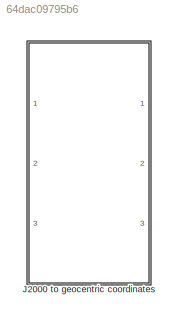
MODEL slx_64dac09795b6
KIND library
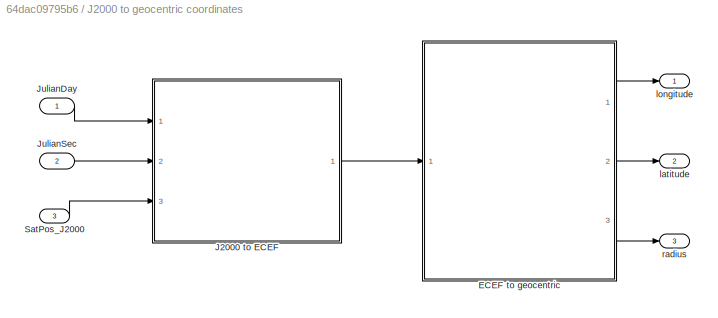
BLOCK [SubSystem] J2000 to geocentric coordinates
  Ports = [3, 3]
  RequestExecContextInheritance = off
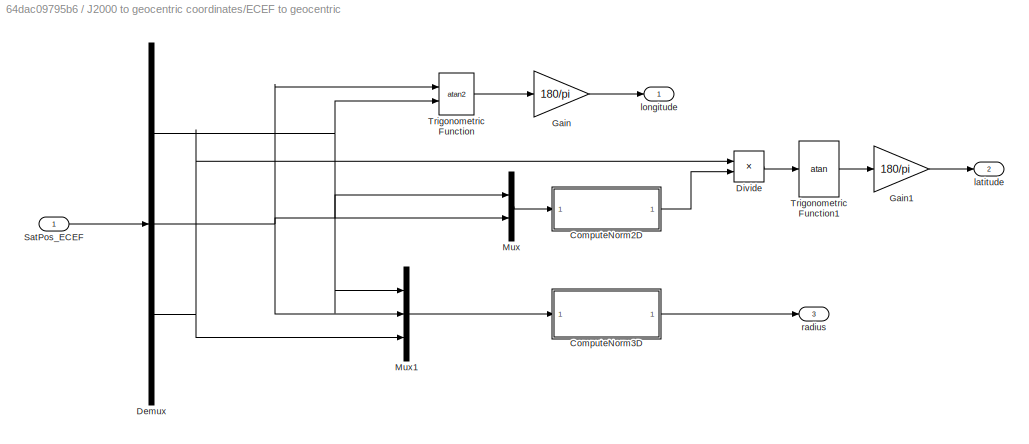
BLOCK [SubSystem] J2000 to geocentric coordinates/ECEF to geocentric
  Ports = [1, 3]
  RequestExecContextInheritance = off
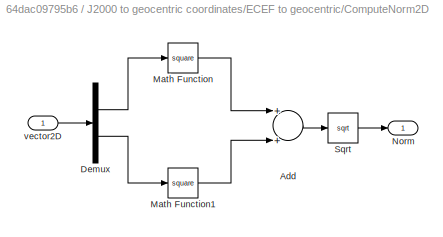
BLOCK [SubSystem] J2000 to geocentric coordinates/ECEF to geocentric/ComputeNorm2D
  Ports = [1, 1]
  RequestExecContextInheritance = off
BLOCK [Sum] J2000 to geocentric coordinates/ECEF to geocentric/ComputeNorm2D/Add
  InputSameDT = off
  OutDataTypeStr = Inherit: Inherit via internal rule
  Ports = [2, 1]
  SaturateOnIntegerOverflow = off
BLOCK [Demux] J2000 to geocentric coordinates/ECEF to geocentric/ComputeNorm2D/Demux
  DisplayOption = bar
  Outputs = 2
  Ports = [1, 2]
BLOCK [Math] J2000 to geocentric coordinates/ECEF to geocentric/ComputeNorm2D/Math Function
  Operator = square
  Ports = [1, 1]
BLOCK [Math] J2000 to geocentric coordinates/ECEF to geocentric/ComputeNorm2D/Math Function1
  Operator = square
  Ports = [1, 1]
BLOCK [Outport] J2000 to geocentric coordinates/ECEF to geocentric/ComputeNorm2D/Norm
  IconDisplay = Port number
BLOCK [Sqrt] J2000 to geocentric coordinates/ECEF to geocentric/ComputeNorm2D/Sqrt
BLOCK [Inport] J2000 to geocentric coordinates/ECEF to geocentric/ComputeNorm2D/vector2D
  IconDisplay = Port number
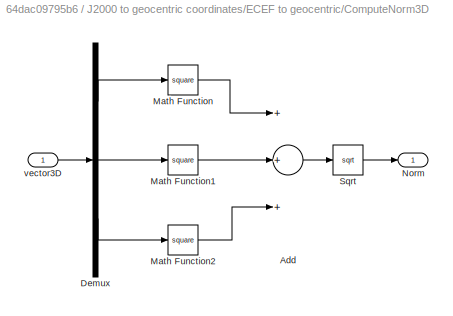
BLOCK [SubSystem] J2000 to geocentric coordinates/ECEF to geocentric/ComputeNorm3D
  Ports = [1, 1]
  RequestExecContextInheritance = off
BLOCK [Sum] J2000 to geocentric coordinates/ECEF to geocentric/ComputeNorm3D/Add
  InputSameDT = off
  Inputs = +++
  OutDataTypeStr = Inherit: Inherit via internal rule
  Ports = [3, 1]
  SaturateOnIntegerOverflow = off
BLOCK [Demux] J2000 to geocentric coordinates/ECEF to geocentric/ComputeNorm3D/Demux
  DisplayOption = bar
  Outputs = 3
  Ports = [1, 3]
BLOCK [Math] J2000 to geocentric coordinates/ECEF to geocentric/ComputeNorm3D/Math Function
  Operator = square
  Ports = [1, 1]
BLOCK [Math] J2000 to geocentric coordinates/ECEF to geocentric/ComputeNorm3D/Math Function1
  Operator = square
  Ports = [1, 1]
BLOCK [Math] J2000 to geocentric coordinates/ECEF to geocentric/ComputeNorm3D/Math Function2
  Operator = square
  Ports = [1, 1]
BLOCK [Outport] J2000 to geocentric coordinates/ECEF to geocentric/ComputeNorm3D/Norm
  IconDisplay = Port number
BLOCK [Sqrt] J2000 to geocentric coordinates/ECEF to geocentric/ComputeNorm3D/Sqrt
BLOCK [Inport] J2000 to geocentric coordinates/ECEF to geocentric/ComputeNorm3D/vector3D
  IconDisplay = Port number
BLOCK [Demux] J2000 to geocentric coordinates/ECEF to geocentric/Demux
  DisplayOption = bar
  Outputs = 3
  Ports = [1, 3]
BLOCK [Product] J2000 to geocentric coordinates/ECEF to geocentric/Divide
  InputSameDT = off
  Inputs = */
  OutDataTypeStr = Inherit: Inherit via internal rule
  Ports = [2, 1]
  RndMeth = Floor
  SaturateOnIntegerOverflow = off
BLOCK [Gain] J2000 to geocentric coordinates/ECEF to geocentric/Gain
  Gain = 180/pi
  OutDataTypeStr = Inherit: Inherit via internal rule
  ParamDataTypeStr = Inherit: Inherit via internal rule
  SaturateOnIntegerOverflow = off
BLOCK [Gain] J2000 to geocentric coordinates/ECEF to geocentric/Gain1
  Gain = 180/pi
  OutDataTypeStr = Inherit: Inherit via internal rule
  ParamDataTypeStr = Inherit: Inherit via internal rule
  SaturateOnIntegerOverflow = off
BLOCK [Mux] J2000 to geocentric coordinates/ECEF to geocentric/Mux
  DisplayOption = bar
  Inputs = 2
  Ports = [2, 1]
BLOCK [Mux] J2000 to geocentric coordinates/ECEF to geocentric/Mux1
  DisplayOption = bar
  Inputs = 3
  Ports = [3, 1]
BLOCK [Inport] J2000 to geocentric coordinates/ECEF to geocentric/SatPos_ECEF
  IconDisplay = Port number
BLOCK [Trigonometry] J2000 to geocentric coordinates/ECEF to geocentric/Trigonometric Function
  Operator = atan2
  Ports = [2, 1]
BLOCK [Trigonometry] J2000 to geocentric coordinates/ECEF to geocentric/Trigonometric Function1
  Operator = atan
  Ports = [1, 1]
BLOCK [Outport] J2000 to geocentric coordinates/ECEF to geocentric/latitude
  IconDisplay = Port number
  Port = 2
BLOCK [Outport] J2000 to geocentric coordinates/ECEF to geocentric/longitude
  IconDisplay = Port number
BLOCK [Outport] J2000 to geocentric coordinates/ECEF to geocentric/radius
  IconDisplay = Port number
  Port = 3
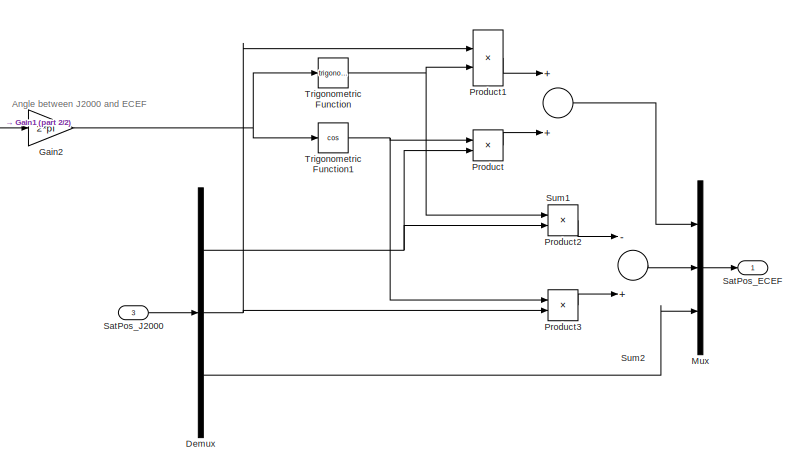
[diagram: J2000 to geocentric coordinates/J2000 to ECEF - part 1/2, right side, full height]
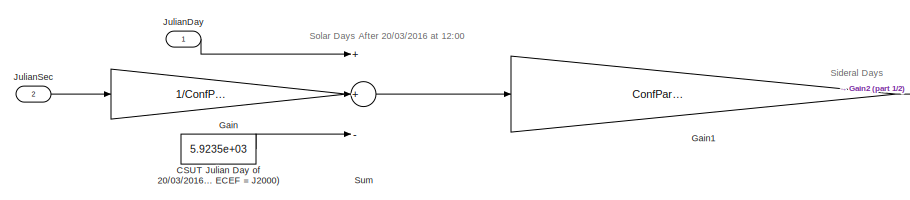
[diagram: J2000 to geocentric coordinates/J2000 to ECEF - part 2/2, top left region]
BLOCK [SubSystem] J2000 to geocentric coordinates/J2000 to ECEF
  Ports = [3, 1]
  RequestExecContextInheritance = off
BLOCK [Constant] J2000 to geocentric coordinates/J2000 to ECEF/CSUT Julian Day of 20//03//2016 at 12:00 UTC (moment in which ECEF = J2000)
  Value = 5.9235e+03
BLOCK [Demux] J2000 to geocentric coordinates/J2000 to ECEF/Demux
  DisplayOption = bar
  Outputs = 3
  Ports = [1, 3]
BLOCK [Gain] J2000 to geocentric coordinates/J2000 to ECEF/Gain
  Gain = 1/ConfParam.confConst.SolarDay
  OutDataTypeStr = Inherit: Inherit via internal rule
  ParamDataTypeStr = Inherit: Inherit via internal rule
  SaturateOnIntegerOverflow = off
BLOCK [Gain] J2000 to geocentric coordinates/J2000 to ECEF/Gain1
  Gain = ConfParam.confConst.SolarDay/ConfParam.confConst.SideralDay
  OutDataTypeStr = Inherit: Inherit via internal rule
  ParamDataTypeStr = Inherit: Inherit via internal rule
  SaturateOnIntegerOverflow = off
BLOCK [Gain] J2000 to geocentric coordinates/J2000 to ECEF/Gain2
  Gain = 2*pi
  OutDataTypeStr = Inherit: Inherit via internal rule
  ParamDataTypeStr = Inherit: Inherit via internal rule
  SaturateOnIntegerOverflow = off
BLOCK [Inport] J2000 to geocentric coordinates/J2000 to ECEF/JulianDay
  IconDisplay = Port number
BLOCK [Inport] J2000 to geocentric coordinates/J2000 to ECEF/JulianSec
  IconDisplay = Port number
  Port = 2
BLOCK [Mux] J2000 to geocentric coordinates/J2000 to ECEF/Mux
  DisplayOption = bar
  Inputs = 3
  Ports = [3, 1]
BLOCK [Product] J2000 to geocentric coordinates/J2000 to ECEF/Product
  InputSameDT = off
  OutDataTypeStr = Inherit: Inherit via internal rule
  Ports = [2, 1]
  RndMeth = Floor
  SaturateOnIntegerOverflow = off
BLOCK [Product] J2000 to geocentric coordinates/J2000 to ECEF/Product1
  InputSameDT = off
  OutDataTypeStr = Inherit: Inherit via internal rule
  Ports = [2, 1]
  RndMeth = Floor
  SaturateOnIntegerOverflow = off
BLOCK [Product] J2000 to geocentric coordinates/J2000 to ECEF/Product2
  InputSameDT = off
  OutDataTypeStr = Inherit: Inherit via internal rule
  Ports = [2, 1]
  RndMeth = Floor
  SaturateOnIntegerOverflow = off
BLOCK [Product] J2000 to geocentric coordinates/J2000 to ECEF/Product3
  InputSameDT = off
  OutDataTypeStr = Inherit: Inherit via internal rule
  Ports = [2, 1]
  RndMeth = Floor
  SaturateOnIntegerOverflow = off
BLOCK [Outport] J2000 to geocentric coordinates/J2000 to ECEF/SatPos_ECEF
  IconDisplay = Port number
BLOCK [Inport] J2000 to geocentric coordinates/J2000 to ECEF/SatPos_J2000
  IconDisplay = Port number
  Port = 3
BLOCK [Sum] J2000 to geocentric coordinates/J2000 to ECEF/Sum
  InputSameDT = off
  Inputs = ++-
  OutDataTypeStr = Inherit: Inherit via internal rule
  Ports = [3, 1]
  SaturateOnIntegerOverflow = off
BLOCK [Sum] J2000 to geocentric coordinates/J2000 to ECEF/Sum1
  InputSameDT = off
  OutDataTypeStr = Inherit: Inherit via internal rule
  Ports = [2, 1]
  SaturateOnIntegerOverflow = off
BLOCK [Sum] J2000 to geocentric coordinates/J2000 to ECEF/Sum2
  InputSameDT = off
  Inputs = -+
  OutDataTypeStr = Inherit: Inherit via internal rule
  Ports = [2, 1]
  SaturateOnIntegerOverflow = off
BLOCK [Trigonometry] J2000 to geocentric coordinates/J2000 to ECEF/Trigonometric Function
  Ports = [1, 1]
BLOCK [Trigonometry] J2000 to geocentric coordinates/J2000 to ECEF/Trigonometric Function1
  Operator = cos
  Ports = [1, 1]
BLOCK [Inport] J2000 to geocentric coordinates/JulianDay
  IconDisplay = Port number
BLOCK [Inport] J2000 to geocentric coordinates/JulianSec
  IconDisplay = Port number
  Port = 2
BLOCK [Inport] J2000 to geocentric coordinates/SatPos_J2000
  IconDisplay = Port number
  Port = 3
BLOCK [Outport] J2000 to geocentric coordinates/latitude
  IconDisplay = Port number
  Port = 2
BLOCK [Outport] J2000 to geocentric coordinates/longitude
  IconDisplay = Port number
BLOCK [Outport] J2000 to geocentric coordinates/radius
  IconDisplay = Port number
  Port = 3
ANNOTATION J2000 to geocentric coordinates/J2000 to ECEF: Angle between J2000 and ECEF
ANNOTATION J2000 to geocentric coordinates/J2000 to ECEF: Sideral Days
ANNOTATION J2000 to geocentric coordinates/J2000 to ECEF: Solar Days After 20/03/2016 at 12:00
LINE J2000 to geocentric coordinates/ECEF to geocentric/ComputeNorm2D/Add:1 -> J2000 to geocentric coordinates/ECEF to geocentric/ComputeNorm2D/Sqrt:1
LINE J2000 to geocentric coordinates/ECEF to geocentric/ComputeNorm2D/Demux:1 -> J2000 to geocentric coordinates/ECEF to geocentric/ComputeNorm2D/Math Function:1
LINE J2000 to geocentric coordinates/ECEF to geocentric/ComputeNorm2D/Demux:2 -> J2000 to geocentric coordinates/ECEF to geocentric/ComputeNorm2D/Math Function1:1
LINE J2000 to geocentric coordinates/ECEF to geocentric/ComputeNorm2D/Math Function1:1 -> J2000 to geocentric coordinates/ECEF to geocentric/ComputeNorm2D/Add:2
LINE J2000 to geocentric coordinates/ECEF to geocentric/ComputeNorm2D/Math Function:1 -> J2000 to geocentric coordinates/ECEF to geocentric/ComputeNorm2D/Add:1
LINE J2000 to geocentric coordinates/ECEF to geocentric/ComputeNorm2D/Sqrt:1 -> J2000 to geocentric coordinates/ECEF to geocentric/ComputeNorm2D/Norm:1
LINE J2000 to geocentric coordinates/ECEF to geocentric/ComputeNorm2D/vector2D:1 -> J2000 to geocentric coordinates/ECEF to geocentric/ComputeNorm2D/Demux:1
LINE J2000 to geocentric coordinates/ECEF to geocentric/ComputeNorm2D:1 -> J2000 to geocentric coordinates/ECEF to geocentric/Divide:2
LINE J2000 to geocentric coordinates/ECEF to geocentric/ComputeNorm3D/Add:1 -> J2000 to geocentric coordinates/ECEF to geocentric/ComputeNorm3D/Sqrt:1
LINE J2000 to geocentric coordinates/ECEF to geocentric/ComputeNorm3D/Demux:1 -> J2000 to geocentric coordinates/ECEF to geocentric/ComputeNorm3D/Math Function:1
LINE J2000 to geocentric coordinates/ECEF to geocentric/ComputeNorm3D/Demux:2 -> J2000 to geocentric coordinates/ECEF to geocentric/ComputeNorm3D/Math Function1:1
LINE J2000 to geocentric coordinates/ECEF to geocentric/ComputeNorm3D/Demux:3 -> J2000 to geocentric coordinates/ECEF to geocentric/ComputeNorm3D/Math Function2:1
LINE J2000 to geocentric coordinates/ECEF to geocentric/ComputeNorm3D/Math Function1:1 -> J2000 to geocentric coordinates/ECEF to geocentric/ComputeNorm3D/Add:2
LINE J2000 to geocentric coordinates/ECEF to geocentric/ComputeNorm3D/Math Function2:1 -> J2000 to geocentric coordinates/ECEF to geocentric/ComputeNorm3D/Add:3
LINE J2000 to geocentric coordinates/ECEF to geocentric/ComputeNorm3D/Math Function:1 -> J2000 to geocentric coordinates/ECEF to geocentric/ComputeNorm3D/Add:1
LINE J2000 to geocentric coordinates/ECEF to geocentric/ComputeNorm3D/Sqrt:1 -> J2000 to geocentric coordinates/ECEF to geocentric/ComputeNorm3D/Norm:1
LINE J2000 to geocentric coordinates/ECEF to geocentric/ComputeNorm3D/vector3D:1 -> J2000 to geocentric coordinates/ECEF to geocentric/ComputeNorm3D/Demux:1
LINE J2000 to geocentric coordinates/ECEF to geocentric/ComputeNorm3D:1 -> J2000 to geocentric coordinates/ECEF to geocentric/radius:1
NET J2000 to geocentric coordinates/ECEF to geocentric/Demux:1 -> J2000 to geocentric coordinates/ECEF to geocentric/Mux1:1, J2000 to geocentric coordinates/ECEF to geocentric/Mux:1, J2000 to geocentric coordinates/ECEF to geocentric/Trigonometric Function:2
NET J2000 to geocentric coordinates/ECEF to geocentric/Demux:2 -> J2000 to geocentric coordinates/ECEF to geocentric/Mux1:2, J2000 to geocentric coordinates/ECEF to geocentric/Mux:2, J2000 to geocentric coordinates/ECEF to geocentric/Trigonometric Function:1
NET J2000 to geocentric coordinates/ECEF to geocentric/Demux:3 -> J2000 to geocentric coordinates/ECEF to geocentric/Divide:1, J2000 to geocentric coordinates/ECEF to geocentric/Mux1:3
LINE J2000 to geocentric coordinates/ECEF to geocentric/Divide:1 -> J2000 to geocentric coordinates/ECEF to geocentric/Trigonometric Function1:1
LINE J2000 to geocentric coordinates/ECEF to geocentric/Gain1:1 -> J2000 to geocentric coordinates/ECEF to geocentric/latitude:1
LINE J2000 to geocentric coordinates/ECEF to geocentric/Gain:1 -> J2000 to geocentric coordinates/ECEF to geocentric/longitude:1
LINE J2000 to geocentric coordinates/ECEF to geocentric/Mux1:1 -> J2000 to geocentric coordinates/ECEF to geocentric/ComputeNorm3D:1
LINE J2000 to geocentric coordinates/ECEF to geocentric/Mux:1 -> J2000 to geocentric coordinates/ECEF to geocentric/ComputeNorm2D:1
LINE J2000 to geocentric coordinates/ECEF to geocentric/SatPos_ECEF:1 -> J2000 to geocentric coordinates/ECEF to geocentric/Demux:1
LINE J2000 to geocentric coordinates/ECEF to geocentric/Trigonometric Function1:1 -> J2000 to geocentric coordinates/ECEF to geocentric/Gain1:1
LINE J2000 to geocentric coordinates/ECEF to geocentric/Trigonometric Function:1 -> J2000 to geocentric coordinates/ECEF to geocentric/Gain:1
LINE J2000 to geocentric coordinates/ECEF to geocentric:1 -> J2000 to geocentric coordinates/longitude:1
LINE J2000 to geocentric coordinates/ECEF to geocentric:2 -> J2000 to geocentric coordinates/latitude:1
LINE J2000 to geocentric coordinates/ECEF to geocentric:3 -> J2000 to geocentric coordinates/radius:1
LINE J2000 to geocentric coordinates/J2000 to ECEF/CSUT Julian Day of 20//03//2016 at 12:00 UTC (moment in which ECEF = J2000):1 -> J2000 to geocentric coordinates/J2000 to ECEF/Sum:3
NET J2000 to geocentric coordinates/J2000 to ECEF/Demux:1 -> J2000 to geocentric coordinates/J2000 to ECEF/Product2:2, J2000 to geocentric coordinates/J2000 to ECEF/Product:2
NET J2000 to geocentric coordinates/J2000 to ECEF/Demux:2 -> J2000 to geocentric coordinates/J2000 to ECEF/Product1:1, J2000 to geocentric coordinates/J2000 to ECEF/Product3:2
LINE J2000 to geocentric coordinates/J2000 to ECEF/Demux:3 -> J2000 to geocentric coordinates/J2000 to ECEF/Mux:3
LINE J2000 to geocentric coordinates/J2000 to ECEF/Gain1:1 -> J2000 to geocentric coordinates/J2000 to ECEF/Gain2:1
NET J2000 to geocentric coordinates/J2000 to ECEF/Gain2:1 -> J2000 to geocentric coordinates/J2000 to ECEF/Trigonometric Function1:1, J2000 to geocentric coordinates/J2000 to ECEF/Trigonometric Function:1
LINE J2000 to geocentric coordinates/J2000 to ECEF/Gain:1 -> J2000 to geocentric coordinates/J2000 to ECEF/Sum:2
LINE J2000 to geocentric coordinates/J2000 to ECEF/JulianDay:1 -> J2000 to geocentric coordinates/J2000 to ECEF/Sum:1
LINE J2000 to geocentric coordinates/J2000 to ECEF/JulianSec:1 -> J2000 to geocentric coordinates/J2000 to ECEF/Gain:1
LINE J2000 to geocentric coordinates/J2000 to ECEF/Mux:1 -> J2000 to geocentric coordinates/J2000 to ECEF/SatPos_ECEF:1
LINE J2000 to geocentric coordinates/J2000 to ECEF/Product1:1 -> J2000 to geocentric coordinates/J2000 to ECEF/Sum1:1
LINE J2000 to geocentric coordinates/J2000 to ECEF/Product2:1 -> J2000 to geocentric coordinates/J2000 to ECEF/Sum2:1
LINE J2000 to geocentric coordinates/J2000 to ECEF/Product3:1 -> J2000 to geocentric coordinates/J2000 to ECEF/Sum2:2
LINE J2000 to geocentric coordinates/J2000 to ECEF/Product:1 -> J2000 to geocentric coordinates/J2000 to ECEF/Sum1:2
LINE J2000 to geocentric coordinates/J2000 to ECEF/SatPos_J2000:1 -> J2000 to geocentric coordinates/J2000 to ECEF/Demux:1
LINE J2000 to geocentric coordinates/J2000 to ECEF/Sum1:1 -> J2000 to geocentric coordinates/J2000 to ECEF/Mux:1
LINE J2000 to geocentric coordinates/J2000 to ECEF/Sum2:1 -> J2000 to geocentric coordinates/J2000 to ECEF/Mux:2
LINE J2000 to geocentric coordinates/J2000 to ECEF/Sum:1 -> J2000 to geocentric coordinates/J2000 to ECEF/Gain1:1
NET J2000 to geocentric coordinates/J2000 to ECEF/Trigonometric Function1:1 -> J2000 to geocentric coordinates/J2000 to ECEF/Product3:1, J2000 to geocentric coordinates/J2000 to ECEF/Product:1
NET J2000 to geocentric coordinates/J2000 to ECEF/Trigonometric Function:1 -> J2000 to geocentric coordinates/J2000 to ECEF/Product1:2, J2000 to geocentric coordinates/J2000 to ECEF/Product2:1
LINE J2000 to geocentric coordinates/J2000 to ECEF:1 -> J2000 to geocentric coordinates/ECEF to geocentric:1
LINE J2000 to geocentric coordinates/JulianDay:1 -> J2000 to geocentric coordinates/J2000 to ECEF:1
LINE J2000 to geocentric coordinates/JulianSec:1 -> J2000 to geocentric coordinates/J2000 to ECEF:2
LINE J2000 to geocentric coordinates/SatPos_J2000:1 -> J2000 to geocentric coordinates/J2000 to ECEF:3
note: NET lines group one-source signal fan-out (src -> all destinations, sorted); 1:1 wires keep LINE
